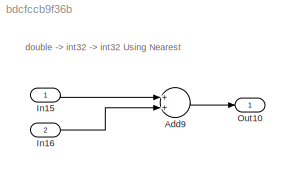
MODEL slx_bdcfccb9f36b
KIND model
CONFIG AbsTol = auto
CONFIG EnableMultiTasking = off
CONFIG FixedStep = 0.200000
CONFIG MaxStep = auto
CONFIG MinStep = auto
CONFIG RelTol = 1e-3
CONFIG SampleTimeConstraint = Unconstrained
CONFIG Solver = FixedStepDiscrete
CONFIG SolverName = FixedStepDiscrete
CONFIG StartTime = 0.0
CONFIG StopTime = 10.0
BLOCK [Sum] Add9
  AccumDataTypeStr = int32
  InputSameDT = off
  OutDataTypeStr = int32
  Ports = [2, 1]
  RndMeth = Nearest
  SaturateOnIntegerOverflow = off
BLOCK [Inport] In15
  IconDisplay = Port number
  OutDataTypeStr = double
BLOCK [Inport] In16
  IconDisplay = Port number
  OutDataTypeStr = int32
  Port = 2
BLOCK [Outport] Out10
  IconDisplay = Port number
ANNOTATION (root): double -> int32 -> int32 Using Nearest
LINE Add9:1 -> Out10:1
LINE In15:1 -> Add9:1
LINE In16:1 -> Add9:2
